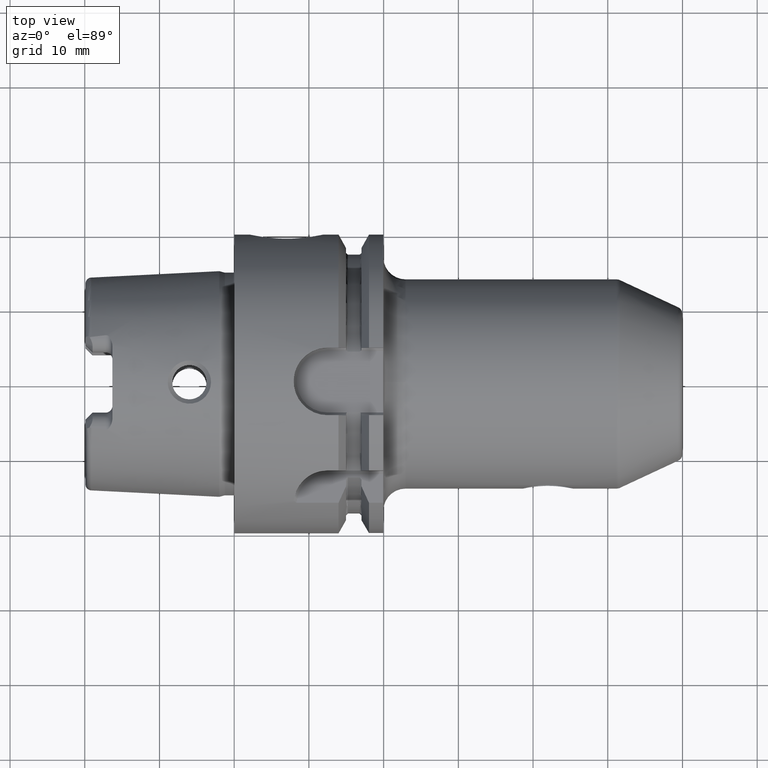
[diagram: clean part render]
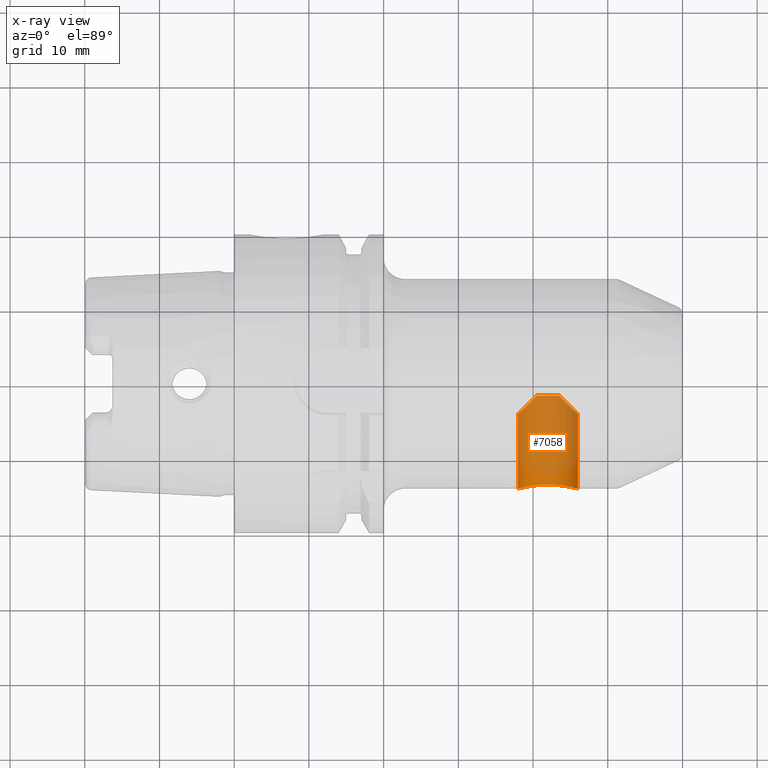
[diagram: x-ray — body ghosted, one internal face saturated and labeled with its STEP entity id]
A machine part, top view, then the same camera in x-ray: the body is ghosted and one INTERNAL B-rep face — a face not visible from any outside direction — is saturated and labeled: STEP entity #7058.
In plain terms, the highlighted cylindrical surface (edge-blend (fillet) strip) has radius 4 mm, axis along (0, -1, 0).
Its self-contained STEP definition (entity closure, byte-faithful):
#6897=CARTESIAN_POINT('',(3.8E1,-4.E0,0.E0));
#6898=CARTESIAN_POINT('',(3.8E1,-4.E0,-1.581321374932E-1));
#6899=CARTESIAN_POINT('',(3.801875864491E1,-3.981241355087E0,
-4.755335738081E-1));
#6900=CARTESIAN_POINT('',(3.810408785519E1,-3.895912144809E0,
-9.477950331038E-1));
#6901=CARTESIAN_POINT('',(3.824605183577E1,-3.753948164231E0,
-1.410591088608E0));
#6902=CARTESIAN_POINT('',(3.845448449398E1,-3.545515506021E0,
-1.875846521329E0));
#6903=CARTESIAN_POINT('',(3.873309590102E1,-3.266904098985E0,
-2.330418128866E0));
#6904=CARTESIAN_POINT('',(3.910345167219E1,-2.896548327807E0,
-2.780047894982E0));
#6905=CARTESIAN_POINT('',(3.954919479102E1,-2.450805208984E0,
-3.179933100910E0));
#6906=CARTESIAN_POINT('',(4.003390875152E1,-1.966091248483E0,
-3.497917940089E0));
#6907=CARTESIAN_POINT('',(4.034584579236E1,-1.654154207642E0,
-3.645740796194E0));
#6908=CARTESIAN_POINT('',(4.05E1,-1.5E0,-3.708099243548E0));
#6910=CARTESIAN_POINT('',(4.35E1,-1.5E0,-3.708099243548E0));
#6911=CARTESIAN_POINT('',(4.365412952954E1,-1.654129529540E0,
-3.645750778977E0));
#6912=CARTESIAN_POINT('',(4.396603618329E1,-1.966036183292E0,
-3.497947853588E0));
#6913=CARTESIAN_POINT('',(4.445077880657E1,-2.450778806566E0,
-3.179958270992E0));
#6914=CARTESIAN_POINT('',(4.489655164856E1,-2.896551648563E0,
-2.780038774482E0));
#6915=CARTESIAN_POINT('',(4.526683626049E1,-3.266836260488E0,
-2.330513676198E0));
#6916=CARTESIAN_POINT('',(4.554551706725E1,-3.545517067245E0,
-1.875845382682E0));
#6917=CARTESIAN_POINT('',(4.575389598101E1,-3.753895981007E0,
-1.410714635701E0));
#6918=CARTESIAN_POINT('',(4.589587508239E1,-3.895875082393E0,
-9.479498188689E-1));
#6919=CARTESIAN_POINT('',(4.598122724492E1,-3.981227244921E0,
-4.756720206989E-1));
#6920=CARTESIAN_POINT('',(4.6E1,-4.E0,-1.581878399190E-1));
#6921=CARTESIAN_POINT('',(4.6E1,-4.E0,0.E0));
#6923=CARTESIAN_POINT('',(4.6E1,-1.400001656836E1,0.E0));
#6924=CARTESIAN_POINT('',(4.6E1,-1.400001656836E1,-2.111786510898E-1));
#6925=CARTESIAN_POINT('',(4.596644382774E1,-1.399035084598E1,
-6.321612982444E-1));
#6926=CARTESIAN_POINT('',(4.581913564207E1,-1.394900243435E1,
-1.242926310886E0));
#6927=CARTESIAN_POINT('',(4.557939598490E1,-1.388478819288E1,
-1.821688148515E0));
#6928=CARTESIAN_POINT('',(4.525179388404E1,-1.380331199380E1,
-2.357537990434E0));
#6929=CARTESIAN_POINT('',(4.484140946608E1,-1.371166401999E1,
-2.839063152607E0));
#6930=CARTESIAN_POINT('',(4.435804211098E1,-1.361890035621E1,
-3.251859615110E0));
#6931=CARTESIAN_POINT('',(4.381408706463E1,-1.353459395912E1,
-3.583827657508E0));
#6932=CARTESIAN_POINT('',(4.322777673061E1,-1.346804367389E1,
-3.824214870560E0));
#6933=CARTESIAN_POINT('',(4.261809896512E1,-1.342592245098E1,
-3.968296396029E0));
#6934=CARTESIAN_POINT('',(4.199747418422E1,-1.341159353017E1,
-4.016043165450E0));
#6935=CARTESIAN_POINT('',(4.137701246740E1,-1.342615201435E1,
-3.967526259775E0));
#6936=CARTESIAN_POINT('',(4.076752136460E1,-1.346847555676E1,
-3.822706882675E0));
#6937=CARTESIAN_POINT('',(4.018136256069E1,-1.353520783404E1,
-3.581532487720E0));
#6938=CARTESIAN_POINT('',(3.963783266350E1,-1.361962524213E1,
-3.248840241350E0));
#6939=CARTESIAN_POINT('',(3.915554780234E1,-1.371230750554E1,
-2.835944010964E0));
#6940=CARTESIAN_POINT('',(3.874624736733E1,-1.380378184648E1,
-2.354748785462E0));
#6941=CARTESIAN_POINT('',(3.841951197382E1,-1.388507434076E1,
-1.819445901686E0));
#6942=CARTESIAN_POINT('',(3.818036565236E1,-1.394914101016E1,
-1.241264802750E0));
#6943=CARTESIAN_POINT('',(3.803345694521E1,-1.399037949821E1,
-6.312500040291E-1));
#6944=CARTESIAN_POINT('',(3.8E1,-1.400001663257E1,-2.108664120128E-1));
#6945=CARTESIAN_POINT('',(3.8E1,-1.400001663257E1,0.E0));
#6947=DIRECTION('',(0.E0,1.E0,0.E0));
#6948=VECTOR('',#6947,1.000001663257E1);
#6949=CARTESIAN_POINT('',(3.8E1,-1.400001663257E1,0.E0));
#6950=LINE('',#6949,#6948);
#6975=DIRECTION('',(0.E0,1.E0,0.E0));
#6976=VECTOR('',#6975,1.000001656836E1);
#6977=CARTESIAN_POINT('',(4.6E1,-1.400001656836E1,0.E0));
#6978=LINE('',#6977,#6976);
#7005=CARTESIAN_POINT('',(4.2E1,-1.5E0,0.E0));
#7006=DIRECTION('',(0.E0,-1.E0,0.E0));
#7007=DIRECTION('',(-3.75E-1,0.E0,-9.270248108870E-1));
#7008=AXIS2_PLACEMENT_3D('',#7005,#7006,#7007);
#7023=CARTESIAN_POINT('',(3.8E1,-1.400001663257E1,0.E0));
#7024=CARTESIAN_POINT('',(3.8E1,-4.E0,0.E0));
#7025=VERTEX_POINT('',#7023);
#7026=VERTEX_POINT('',#7024);
#7027=CARTESIAN_POINT('',(4.6E1,-1.400001656836E1,0.E0));
#7028=CARTESIAN_POINT('',(4.6E1,-4.E0,0.E0));
#7029=VERTEX_POINT('',#7027);
#7030=VERTEX_POINT('',#7028);
#7031=CARTESIAN_POINT('',(4.05E1,-1.5E0,-3.708099243548E0));
#7032=CARTESIAN_POINT('',(4.35E1,-1.5E0,-3.708099243548E0));
#7033=VERTEX_POINT('',#7031);
#7034=VERTEX_POINT('',#7032);
#7039=CARTESIAN_POINT('',(4.2E1,1.270072409928E0,0.E0));
#7040=DIRECTION('',(0.E0,-1.E0,0.E0));
#7041=DIRECTION('',(-1.E0,0.E0,0.E0));
#7042=AXIS2_PLACEMENT_3D('',#7039,#7040,#7041);
#7043=CYLINDRICAL_SURFACE('',#7042,4.E0);
#7045=ORIENTED_EDGE('',*,*,#7044,.T.);
#7047=ORIENTED_EDGE('',*,*,#7046,.T.);
#7049=ORIENTED_EDGE('',*,*,#7048,.T.);
#7051=ORIENTED_EDGE('',*,*,#7050,.T.);
#7053=ORIENTED_EDGE('',*,*,#7052,.F.);
#7055=ORIENTED_EDGE('',*,*,#7054,.T.);
#7056=EDGE_LOOP('',(#7045,#7047,#7049,#7051,#7053,#7055));
#7057=FACE_OUTER_BOUND('',#7056,.F.);
#7058=ADVANCED_FACE('',(#7057),#7043,.F.);
#6909=B_SPLINE_CURVE_WITH_KNOTS('',3,(#6897,#6898,#6899,#6900,#6901,#6902,#6903,
#6904,#6905,#6906,#6907,#6908),.UNSPECIFIED.,.F.,.F.,(4,1,1,1,1,1,1,1,1,4),
(0.E0,1.111111111111E-1,2.222222222222E-1,3.333333333333E-1,4.444444444444E-1,
5.555555555556E-1,6.666666666667E-1,7.777777777778E-1,8.888888888889E-1,1.E0),
.UNSPECIFIED.);
#6922=B_SPLINE_CURVE_WITH_KNOTS('',3,(#6910,#6911,#6912,#6913,#6914,#6915,#6916,
#6917,#6918,#6919,#6920,#6921),.UNSPECIFIED.,.F.,.F.,(4,1,1,1,1,1,1,1,1,4),
(0.E0,1.111111111111E-1,2.222222222222E-1,3.333333333333E-1,4.444444444444E-1,
5.555555555556E-1,6.666666666667E-1,7.777777777778E-1,8.888888888889E-1,1.E0),
.UNSPECIFIED.);
#6946=B_SPLINE_CURVE_WITH_KNOTS('',3,(#6923,#6924,#6925,#6926,#6927,#6928,#6929,
#6930,#6931,#6932,#6933,#6934,#6935,#6936,#6937,#6938,#6939,#6940,#6941,#6942,
#6943,#6944,#6945),.UNSPECIFIED.,.F.,.F.,(4,1,1,1,1,1,1,1,1,1,1,1,1,1,1,1,1,1,1,
1,4),(0.E0,5.E-2,1.E-1,1.5E-1,2.E-1,2.5E-1,3.E-1,3.5E-1,4.E-1,4.5E-1,5.E-1,
5.5E-1,6.E-1,6.5E-1,7.E-1,7.5E-1,8.E-1,8.5E-1,9.E-1,9.5E-1,1.E0),.UNSPECIFIED.);
#7009=CIRCLE('',#7008,4.E0);
#7044=EDGE_CURVE('',#7025,#7026,#6950,.T.);
#7046=EDGE_CURVE('',#7026,#7033,#6909,.T.);
#7048=EDGE_CURVE('',#7033,#7034,#7009,.T.);
#7050=EDGE_CURVE('',#7034,#7030,#6922,.T.);
#7052=EDGE_CURVE('',#7029,#7030,#6978,.T.);
#7054=EDGE_CURVE('',#7029,#7025,#6946,.T.);